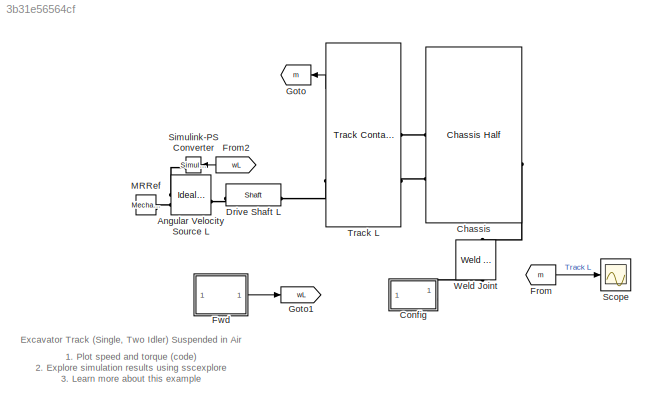
MODEL slx_3b31e56564cf
KIND model
CONFIG AbsTol = 1e-3
CONFIG FixedStep = 2e-4
CONFIG SolverName = ode23t
CONFIG StartFcn = tic
CONFIG StopFcn = Elapsed_Sim_Time = toc;\ndisp(['Elapsed Sim Time = ' num2str(Elapsed_Sim_Time)]);\n
CONFIG StopTime = 20
BLOCK [Reference] Angular Velocity Source L  REF=fl_lib/Mechanical/Mechanical Sources/Ideal Angular
Velocity Source
  SourceBlock = fl_lib/Mechanical/Mechanical Sources/Ideal Angular\nVelocity Source
  SourceType = Ideal Angular\nVelocity Source
BLOCK [Reference] Chassis  REF=sm_excv_chassis_lib/Chassis Half  (lib defined in slx_b1ec5a7399d3)
  NameLocation = top
  SourceBlock = sm_excv_chassis_lib/Chassis Half
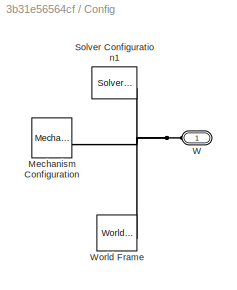
BLOCK [SubSystem] Config
BLOCK [Reference] Config/Mechanism Configuration  REF=sm_lib/Utilities/Mechanism
Configuration
  AttributesFormatString = Gravity: %<GravityVector>
  SourceBlock = sm_lib/Utilities/Mechanism\nConfiguration
  SourceType = Mechanism\nConfiguration
BLOCK [Reference] Config/Solver Configuration1  REF=nesl_utility/Solver
Configuration
  SourceBlock = nesl_utility/Solver\nConfiguration
  SourceType = Solver\nConfiguration
BLOCK [PMIOPort] Config/W
  Side = Left
BLOCK [Reference] Config/World Frame  REF=sm_lib/Frames and
Transforms/World Frame
  SourceBlock = sm_lib/Frames and\nTransforms/World Frame
  SourceType = World Frame
BLOCK [Reference] Drive Shaft L  REF=sm_trackV_lib_chain_underc_elem/Shaft
  SourceBlock = sm_trackV_lib_chain_underc_elem/Shaft
  SourceType = Driveshaft
BLOCK [From] From
  GotoTag = m
BLOCK [From] From2
  GotoTag = wL
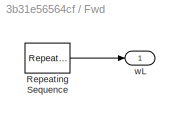
BLOCK [SubSystem] Fwd
  VariantControl = Fwd
BLOCK [Reference] Fwd/Repeating Sequence  REF=simulink/Sources/Repeating
Sequence
  SourceBlock = simulink/Sources/Repeating\nSequence
  SourceType = Repeating table
BLOCK [Outport] Fwd/wL
BLOCK [Goto] Goto
  GotoTag = m
BLOCK [Goto] Goto1
  GotoTag = wL
BLOCK [Reference] MRRef  REF=fl_lib/Mechanical/Rotational Elements/Mechanical
Rotational Reference
  SourceBlock = fl_lib/Mechanical/Rotational Elements/Mechanical\nRotational Reference
  SourceType = Mechanical\nRotational Reference
BLOCK [Scope] Scope
  ActiveDisplayYMaximum = 35828.2276
  ActiveDisplayYMinimum = -11747.25975
  Floating = off
  GraphicalSettings = {"GraphicalSettings":{"LegacySettings":true,"Style":{"AxesScalingProperties":{"ScaleAxesLimitsAtStop":false},"Style":{"AxesColor":"[0 0 0]","ChannelNames":[""],"ColorOrder":"[1 1 0.0666666666666667;0.0745098039215686 0.623529411764706 1;1 0.411764705882353 0.16078431372549;0.392156862745098 0.831372549019608 0.0745098039215686;0.717647058823529 0.274509803921569 1;0.0588235294117647 1 1;1 0.074509...<+399ch>
  MultipleDisplayCache = [{"MaxYLimMag":35828.2276,"MaxYLimReal":35828.2276,"MinYLimMag":0,"MinYLimReal":-11747.25975,"PlotAsMagnitudePhase":false,"ShowGrid":true,"ShowLegend":false,"Title":"%<SignalLabel>","YLabel":""}]
  NumInputPorts = 1
  WasSavedAsWebScope = on
  WindowPosition = [320 463 560 420]
BLOCK [Reference] Simulink-PS Converter  REF=nesl_utility/Simulink-PS
Converter
  NameLocation = top
  SourceBlock = nesl_utility/Simulink-PS\nConverter
  SourceType = Simulink-PS\nConverter
BLOCK [Reference] Track L  REF=sm_trackV_lib_chain_lower_frame_s46i2u0l4/Track Contact Point Cloud
  SourceBlock = sm_trackV_lib_chain_lower_frame_s46i2u0l4/Track Contact Point Cloud
  SourceType = Lower Frame with Point Cloud Contact
BLOCK [Reference] Weld Joint  REF=sm_lib/Joints/Weld Joint
  NameLocation = left
  SourceBlock = sm_lib/Joints/Weld Joint
  SourceType = Weld Joint
ANNOTATION (root): 1. Plot speed and torque ( code ) 2. Explore simulation results using sscexplore 3. Learn more about this example
ANNOTATION (root): Excavator Track (Single, Two Idler) Suspended in Air
LINE From2:1 -> Simulink-PS Converter:1
LINE From:1 -> Scope:1
LINE Fwd/Repeating Sequence:1 -> Fwd/wL:1
LINE Fwd:1 -> Goto1:1
LINE Track L:1 -> Goto:1
PLINE Angular Velocity Source L:LConn1 -- Drive Shaft L:LConn1
PLINE Angular Velocity Source L:RConn1 -- Simulink-PS Converter:RConn1
PLINE Angular Velocity Source L:RConn2 -- MRRef:LConn1
PLINE Chassis:LConn1 -- Track L:LConn1
PLINE Chassis:LConn2 -- Track L:LConn2
PLINE Chassis:RConn1 -- Weld Joint:RConn1
PNET net1: Config/Mechanism Configuration:RConn1 -- Config/Solver Configuration1:RConn1 -- Config/W:RConn1 -- Config/World Frame:RConn1
PLINE Config:LConn1 -- Weld Joint:LConn1
PLINE Drive Shaft L:RConn1 -- Track L:RConn2
note: PNET lines group multi-terminal physical nets as a canonical sorted terminal list (undirected conserving connections); 2-terminal nets keep the pairwise PLINE form
